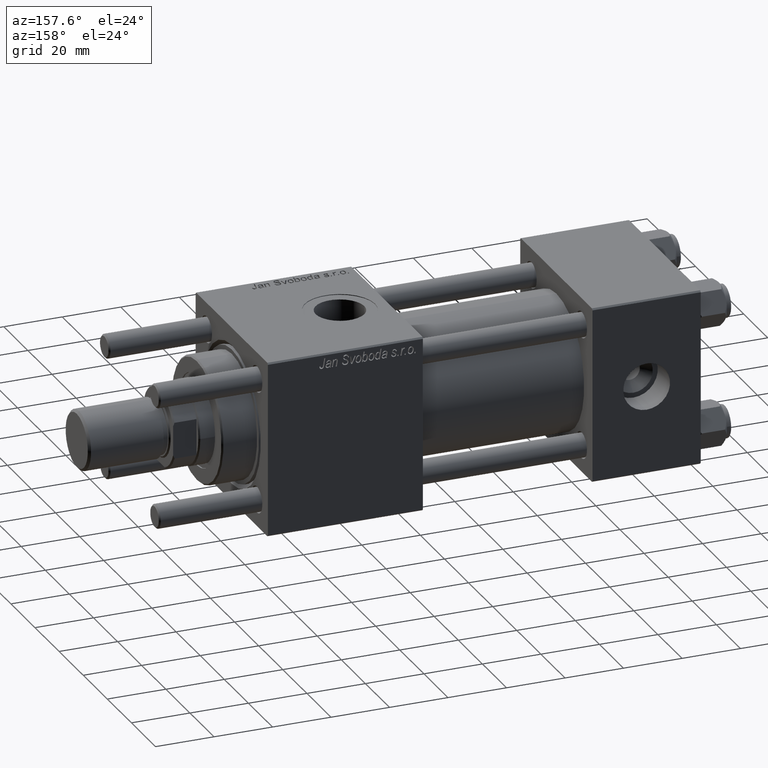
[diagram: clean part render]
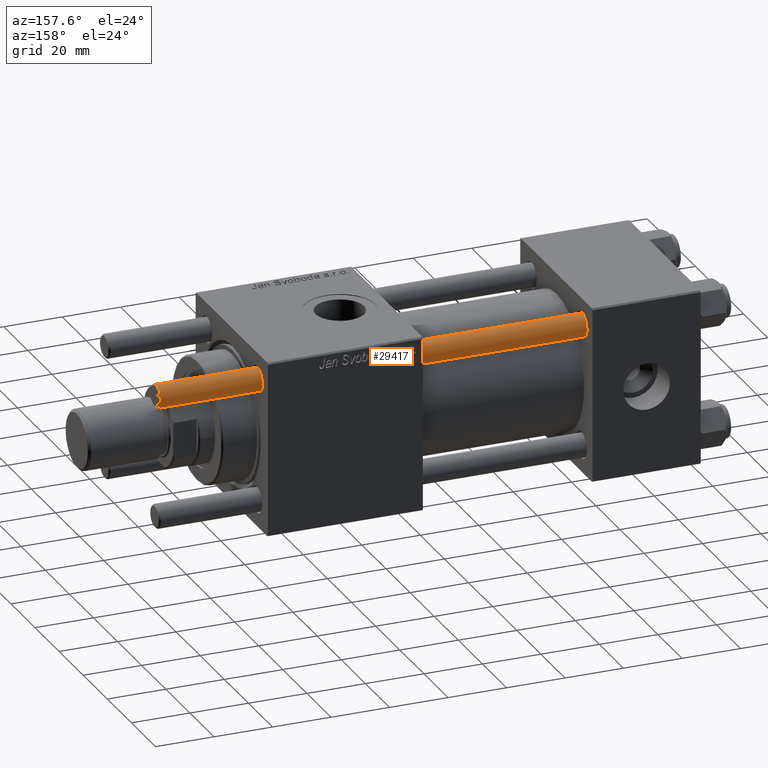
[diagram: same view with one face highlighted and labeled with its STEP entity id]
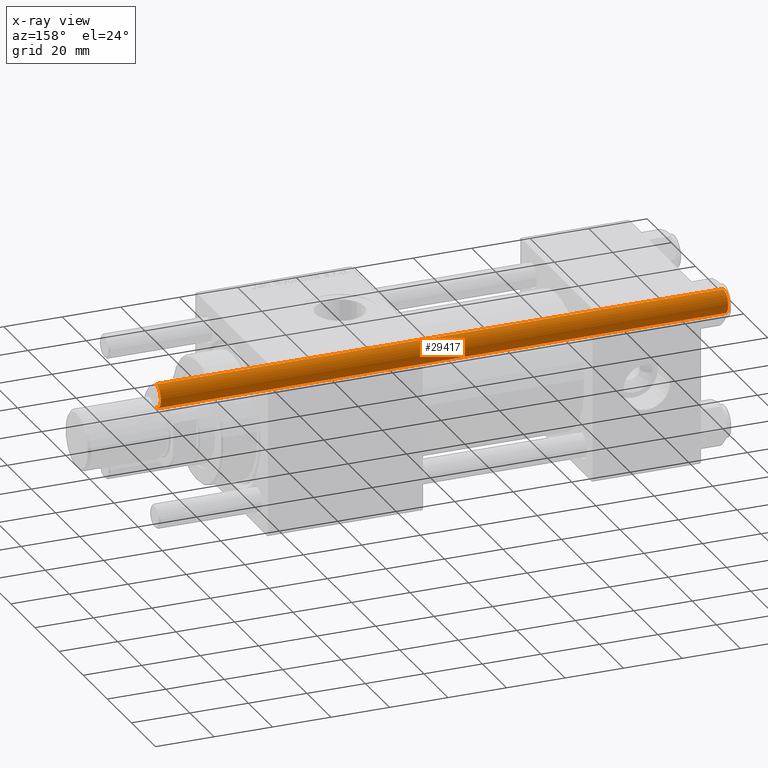
[diagram: x-ray of the same camera — body ghosted, the highlighted face saturated]
A machine part, auxiliary view. The second image highlights one B-rep face of the part: STEP entity #29417.
The next image is the same camera in x-ray: the body ghosted, the highlighted face saturated — about 0% of this face is hidden behind the body in this view.
In plain terms, the highlighted cylindrical surface (edge-blend (fillet) strip) has radius 4 mm, axis along (1, -0, -0).
Its self-contained STEP definition (entity closure, byte-faithful):
#142 = VERTEX_POINT ( 'NONE', #34476 ) ;
#3206 = CARTESIAN_POINT ( 'NONE',  ( 4.000000000000000000, 4.898587196589412829E-16, 195.0000000000000000 ) ) ;
#5174 = VERTEX_POINT ( 'NONE', #41099 ) ;
#5668 = ORIENTED_EDGE ( 'NONE', *, *, #44816, .F. ) ;
#7841 = CIRCLE ( 'NONE', #12480, 4.000000000000000000 ) ;
#8251 = CARTESIAN_POINT ( 'NONE',  ( -4.000000000000000000, 0.000000000000000000, 195.0000000000000000 ) ) ;
#8745 = EDGE_LOOP ( 'NONE', ( #19273, #52245, #40475, #5668 ) ) ;
#11523 = AXIS2_PLACEMENT_3D ( 'NONE', #44421, #31282, #49480 ) ;
#12480 = AXIS2_PLACEMENT_3D ( 'NONE', #35610, #53252, #12914 ) ;
#12914 = DIRECTION ( 'NONE',  ( 1.000000000000000000, 0.000000000000000000, 0.000000000000000000 ) ) ;
#19273 = ORIENTED_EDGE ( 'NONE', *, *, #29054, .T. ) ;
#20902 = VERTEX_POINT ( 'NONE', #28568 ) ;
#22556 = LINE ( 'NONE', #8251, #37403 ) ;
#26187 = LINE ( 'NONE', #3206, #44945 ) ;
#26826 = VERTEX_POINT ( 'NONE', #43489 ) ;
#28568 = CARTESIAN_POINT ( 'NONE',  ( -4.000000000000000000, 0.000000000000000000, 0.5000000000000004441 ) ) ;
#29054 = EDGE_CURVE ( 'NONE', #142, #5174, #47760, .T. ) ;
#29417 = ADVANCED_FACE ( 'NONE', ( #39657 ), #53961, .T. ) ;
#31282 = DIRECTION ( 'NONE',  ( -0.000000000000000000, -0.000000000000000000, -1.000000000000000000 ) ) ;
#31353 = DIRECTION ( 'NONE',  ( 0.000000000000000000, 0.000000000000000000, -1.000000000000000000 ) ) ;
#34476 = CARTESIAN_POINT ( 'NONE',  ( -4.000000000000000000, 0.000000000000000000, 194.5000000000000568 ) ) ;
#35610 = CARTESIAN_POINT ( 'NONE',  ( 0.000000000000000000, 0.000000000000000000, 0.5000000000000004441 ) ) ;
#37403 = VECTOR ( 'NONE', #44379, 1000.000000000000000 ) ;
#37693 = EDGE_CURVE ( 'NONE', #5174, #26826, #26187, .T. ) ;
#39449 = EDGE_CURVE ( 'NONE', #26826, #20902, #7841, .T. ) ;
#39657 = FACE_OUTER_BOUND ( 'NONE', #8745, .T. ) ;
#40475 = ORIENTED_EDGE ( 'NONE', *, *, #39449, .T. ) ;
#41099 = CARTESIAN_POINT ( 'NONE',  ( 4.000000000000000000, 4.898587196589412829E-16, 194.5000000000000568 ) ) ;
#43489 = CARTESIAN_POINT ( 'NONE',  ( 4.000000000000000000, 4.898587196589412829E-16, 0.5000000000000004441 ) ) ;
#44099 = DIRECTION ( 'NONE',  ( -0.000000000000000000, -0.000000000000000000, -1.000000000000000000 ) ) ;
#44379 = DIRECTION ( 'NONE',  ( -0.000000000000000000, -0.000000000000000000, -1.000000000000000000 ) ) ;
#44421 = CARTESIAN_POINT ( 'NONE',  ( 0.000000000000000000, 0.000000000000000000, 195.0000000000000000 ) ) ;
#44816 = EDGE_CURVE ( 'NONE', #142, #20902, #22556, .T. ) ;
#44945 = VECTOR ( 'NONE', #44099, 1000.000000000000000 ) ;
#47760 = CIRCLE ( 'NONE', #57307, 4.000000000000000000 ) ;
#49480 = DIRECTION ( 'NONE',  ( -1.000000000000000000, 0.000000000000000000, 0.000000000000000000 ) ) ;
#52245 = ORIENTED_EDGE ( 'NONE', *, *, #37693, .T. ) ;
#53252 = DIRECTION ( 'NONE',  ( -0.000000000000000000, -0.000000000000000000, 1.000000000000000000 ) ) ;
#53961 = CYLINDRICAL_SURFACE ( 'NONE', #11523, 4.000000000000000000 ) ;
#54618 = CARTESIAN_POINT ( 'NONE',  ( 0.000000000000000000, 0.000000000000000000, 194.5000000000000568 ) ) ;
#57307 = AXIS2_PLACEMENT_3D ( 'NONE', #54618, #31353, #57936 ) ;
#57936 = DIRECTION ( 'NONE',  ( 1.000000000000000000, 0.000000000000000000, 0.000000000000000000 ) ) ;